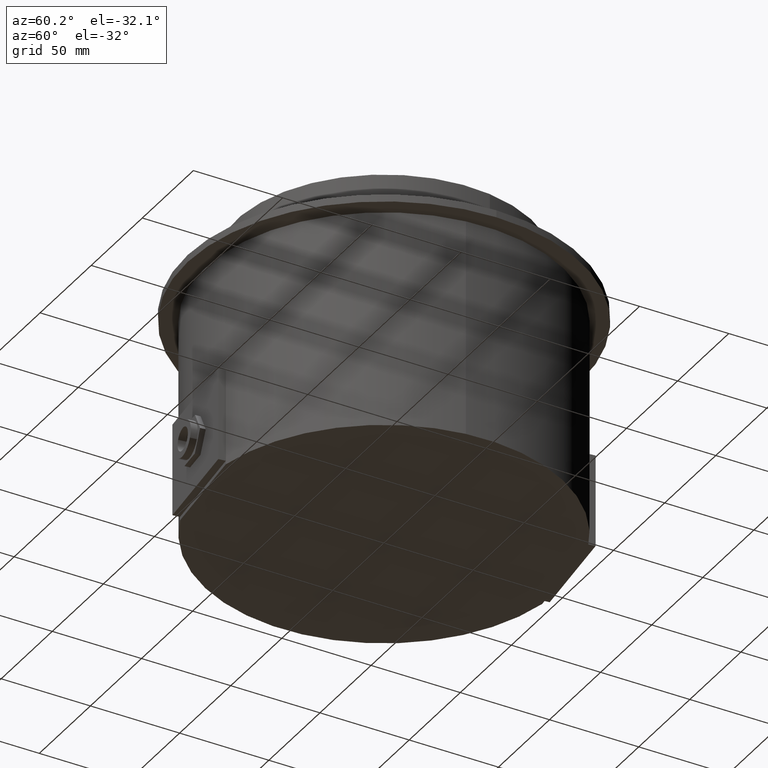
[diagram: clean part render]
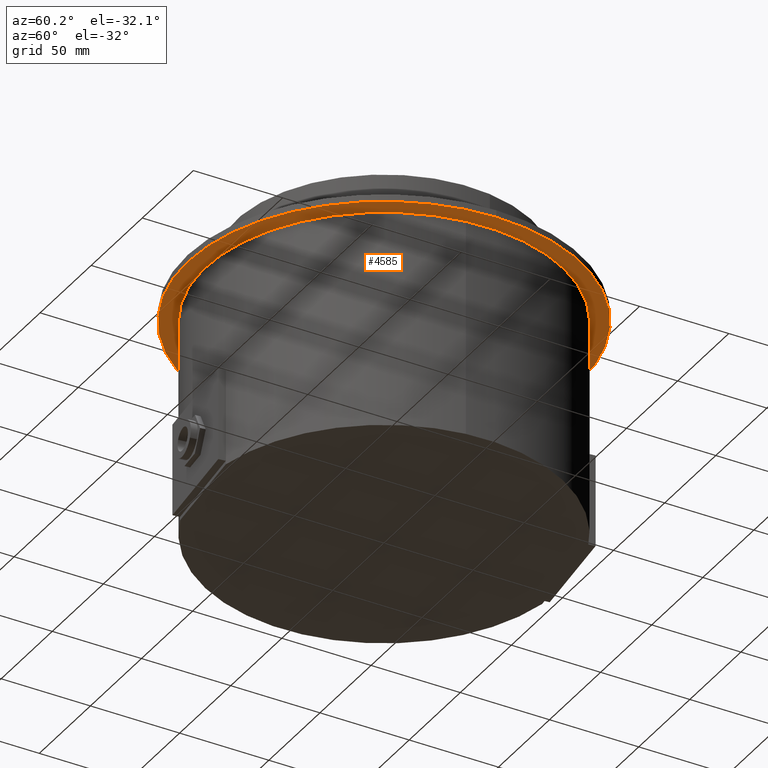
[diagram: same view with one face highlighted and labeled with its STEP entity id]
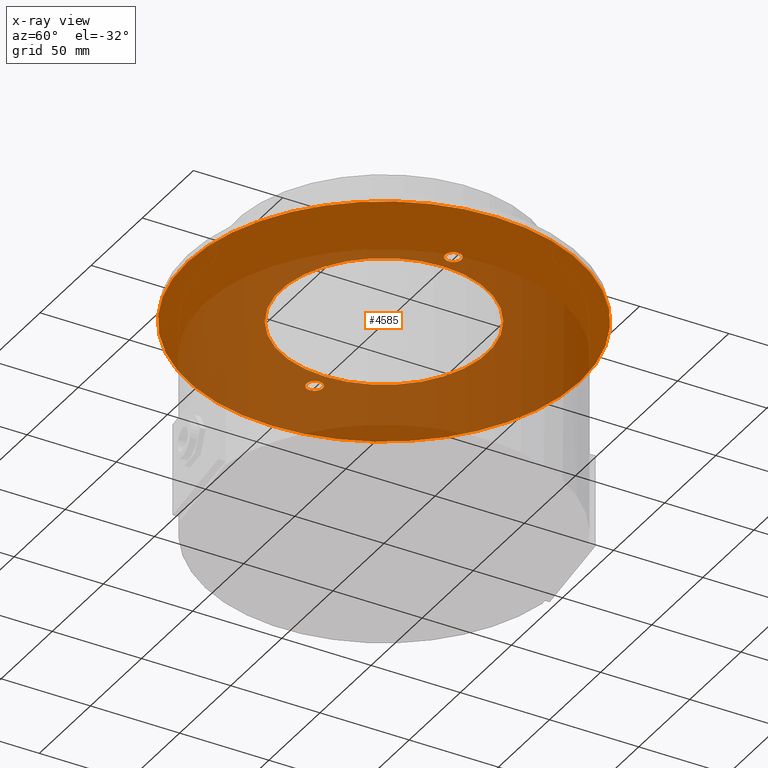
[diagram: x-ray of the same camera — body ghosted, the highlighted face saturated]
A machine part, auxiliary view. The second image highlights one B-rep face of the part: STEP entity #4585.
The next image is the same camera in x-ray: the body ghosted, the highlighted face saturated — about 61% of this face is hidden behind the body in this view.
In plain terms, the highlighted planar face has unit normal (0, 0, 1).
Its self-contained STEP definition (entity closure, byte-faithful):
#24 = ORIENTED_EDGE ( 'NONE', *, *, #17613, .T. ) ;
#1318 = EDGE_LOOP ( 'NONE', ( #55996, #6424, #7545 ) ) ;
#1625 = EDGE_CURVE ( 'NONE', #24598, #12243, #41627, .T. ) ;
#2078 = AXIS2_PLACEMENT_3D ( 'NONE', #36292, #9074, #40923 ) ;
#3851 = AXIS2_PLACEMENT_3D ( 'NONE', #36783, #9571, #41412 ) ;
#4585 = ADVANCED_FACE ( 'NONE', ( #37841, #49979, #51390, #25795 ), #6636, .F. ) ;
#5155 = CARTESIAN_POINT ( 'NONE',  ( -72.40000000000000568, 0.0000000000000000000, 0.0000000000000000000 ) ) ;
#5247 = CARTESIAN_POINT ( 'NONE',  ( 110.0000000000000000, 1.347111479062088523E-14, 0.0000000000000000000 ) ) ;
#6116 = AXIS2_PLACEMENT_3D ( 'NONE', #34309, #7049, #38869 ) ;
#6424 = ORIENTED_EDGE ( 'NONE', *, *, #30745, .T. ) ;
#6523 = EDGE_CURVE ( 'NONE', #19805, #12124, #43022, .T. ) ;
#6636 = PLANE ( 'NONE',  #37545 ) ;
#7049 = DIRECTION ( 'NONE',  ( 0.0000000000000000000, 0.0000000000000000000, 1.000000000000000000 ) ) ;
#7545 = ORIENTED_EDGE ( 'NONE', *, *, #38887, .T. ) ;
#8565 = CARTESIAN_POINT ( 'NONE',  ( -110.0000000000000000, 0.0000000000000000000, 0.0000000000000000000 ) ) ;
#8672 = AXIS2_PLACEMENT_3D ( 'NONE', #17470, #49268, #22047 ) ;
#9074 = DIRECTION ( 'NONE',  ( 0.0000000000000000000, 0.0000000000000000000, 1.000000000000000000 ) ) ;
#9296 = CIRCLE ( 'NONE', #51491, 4.500000000000003553 ) ;
#9571 = DIRECTION ( 'NONE',  ( 0.0000000000000000000, 0.0000000000000000000, 1.000000000000000000 ) ) ;
#10508 = CARTESIAN_POINT ( 'NONE',  ( -67.90000000000000568, 0.0000000000000000000, 0.0000000000000000000 ) ) ;
#11182 = DIRECTION ( 'NONE',  ( 0.0000000000000000000, 0.0000000000000000000, 1.000000000000000000 ) ) ;
#12124 = VERTEX_POINT ( 'NONE', #54030 ) ;
#12243 = VERTEX_POINT ( 'NONE', #5247 ) ;
#12325 = CIRCLE ( 'NONE', #18760, 110.0000000000000000 ) ;
#12429 = CARTESIAN_POINT ( 'NONE',  ( -67.90000000000000568, 0.0000000000000000000, 0.0000000000000000000 ) ) ;
#12891 = ORIENTED_EDGE ( 'NONE', *, *, #13926, .T. ) ;
#13926 = EDGE_CURVE ( 'NONE', #50196, #39846, #46846, .T. ) ;
#15101 = DIRECTION ( 'NONE',  ( 1.000000000000000000, 0.0000000000000000000, 0.0000000000000000000 ) ) ;
#16517 = AXIS2_PLACEMENT_3D ( 'NONE', #12429, #44237, #16989 ) ;
#16989 = DIRECTION ( 'NONE',  ( 1.000000000000000000, 0.0000000000000000000, 0.0000000000000000000 ) ) ;
#17330 = ORIENTED_EDGE ( 'NONE', *, *, #42077, .T. ) ;
#17470 = CARTESIAN_POINT ( 'NONE',  ( 0.0000000000000000000, 0.0000000000000000000, 0.0000000000000000000 ) ) ;
#17613 = EDGE_CURVE ( 'NONE', #12124, #20191, #56505, .T. ) ;
#17812 = CARTESIAN_POINT ( 'NONE',  ( 67.90000000000000568, 0.0000000000000000000, 0.0000000000000000000 ) ) ;
#18534 = DIRECTION ( 'NONE',  ( 0.0000000000000000000, 0.0000000000000000000, 1.000000000000000000 ) ) ;
#18760 = AXIS2_PLACEMENT_3D ( 'NONE', #45756, #18534, #50324 ) ;
#19565 = EDGE_CURVE ( 'NONE', #35144, #24855, #51409, .T. ) ;
#19805 = VERTEX_POINT ( 'NONE', #46842 ) ;
#20191 = VERTEX_POINT ( 'NONE', #40852 ) ;
#20392 = DIRECTION ( 'NONE',  ( 0.0000000000000000000, 0.0000000000000000000, 1.000000000000000000 ) ) ;
#21198 = CARTESIAN_POINT ( 'NONE',  ( -58.00000000000000000, 0.0000000000000000000, 0.0000000000000000000 ) ) ;
#22047 = DIRECTION ( 'NONE',  ( 1.000000000000000000, 0.0000000000000000000, 0.0000000000000000000 ) ) ;
#22383 = DIRECTION ( 'NONE',  ( 1.000000000000000000, 0.0000000000000000000, 0.0000000000000000000 ) ) ;
#22834 = EDGE_LOOP ( 'NONE', ( #17330, #12891 ) ) ;
#24598 = VERTEX_POINT ( 'NONE', #8565 ) ;
#24855 = VERTEX_POINT ( 'NONE', #37153 ) ;
#25795 = FACE_BOUND ( 'NONE', #47703, .T. ) ;
#27094 = CARTESIAN_POINT ( 'NONE',  ( 0.0000000000000000000, 0.0000000000000000000, 0.0000000000000000000 ) ) ;
#27802 = CIRCLE ( 'NONE', #43200, 58.00000000000000000 ) ;
#30745 = EDGE_CURVE ( 'NONE', #24855, #49430, #42626, .T. ) ;
#31624 = DIRECTION ( 'NONE',  ( 1.000000000000000000, 0.0000000000000000000, 0.0000000000000000000 ) ) ;
#34309 = CARTESIAN_POINT ( 'NONE',  ( 67.90000000000000568, 0.0000000000000000000, 0.0000000000000000000 ) ) ;
#35144 = VERTEX_POINT ( 'NONE', #5155 ) ;
#35737 = CIRCLE ( 'NONE', #3851, 4.500000000000003553 ) ;
#35739 = AXIS2_PLACEMENT_3D ( 'NONE', #17812, #49599, #22383 ) ;
#36292 = CARTESIAN_POINT ( 'NONE',  ( -67.90000000000000568, 0.0000000000000000000, 0.0000000000000000000 ) ) ;
#36783 = CARTESIAN_POINT ( 'NONE',  ( 67.90000000000000568, 0.0000000000000000000, 0.0000000000000000000 ) ) ;
#37153 = CARTESIAN_POINT ( 'NONE',  ( -69.07767729684518088, -4.343164305491507449, -1.151926497521296314E-13 ) ) ;
#37545 = AXIS2_PLACEMENT_3D ( 'NONE', #37864, #20392, #52215 ) ;
#37781 = ORIENTED_EDGE ( 'NONE', *, *, #6523, .T. ) ;
#37825 = AXIS2_PLACEMENT_3D ( 'NONE', #38416, #11182, #43015 ) ;
#37841 = FACE_OUTER_BOUND ( 'NONE', #41199, .T. ) ;
#37864 = CARTESIAN_POINT ( 'NONE',  ( 0.0000000000000000000, 0.0000000000000000000, 0.0000000000000000000 ) ) ;
#38416 = CARTESIAN_POINT ( 'NONE',  ( 0.0000000000000000000, 0.0000000000000000000, 0.0000000000000000000 ) ) ;
#38869 = DIRECTION ( 'NONE',  ( 1.000000000000000000, 0.0000000000000000000, 0.0000000000000000000 ) ) ;
#38887 = EDGE_CURVE ( 'NONE', #49430, #35144, #9296, .T. ) ;
#39426 = ORIENTED_EDGE ( 'NONE', *, *, #1625, .F. ) ;
#39846 = VERTEX_POINT ( 'NONE', #21198 ) ;
#40852 = CARTESIAN_POINT ( 'NONE',  ( 72.40000000000000568, 5.510910596163096458E-16, 0.0000000000000000000 ) ) ;
#40923 = DIRECTION ( 'NONE',  ( 1.000000000000000000, 0.0000000000000000000, 0.0000000000000000000 ) ) ;
#41199 = EDGE_LOOP ( 'NONE', ( #39426, #46578 ) ) ;
#41412 = DIRECTION ( 'NONE',  ( 1.000000000000000000, 0.0000000000000000000, 0.0000000000000000000 ) ) ;
#41627 = CIRCLE ( 'NONE', #37825, 110.0000000000000000 ) ;
#42077 = EDGE_CURVE ( 'NONE', #39846, #50196, #27802, .T. ) ;
#42335 = DIRECTION ( 'NONE',  ( 0.0000000000000000000, 0.0000000000000000000, 1.000000000000000000 ) ) ;
#42626 = CIRCLE ( 'NONE', #16517, 4.500000000000003553 ) ;
#43015 = DIRECTION ( 'NONE',  ( 1.000000000000000000, 0.0000000000000000000, 0.0000000000000000000 ) ) ;
#43022 = CIRCLE ( 'NONE', #35739, 4.500000000000003553 ) ;
#43200 = AXIS2_PLACEMENT_3D ( 'NONE', #27094, #58840, #31624 ) ;
#44237 = DIRECTION ( 'NONE',  ( 0.0000000000000000000, 0.0000000000000000000, 1.000000000000000000 ) ) ;
#45756 = CARTESIAN_POINT ( 'NONE',  ( 0.0000000000000000000, 0.0000000000000000000, 0.0000000000000000000 ) ) ;
#46397 = ORIENTED_EDGE ( 'NONE', *, *, #58835, .T. ) ;
#46578 = ORIENTED_EDGE ( 'NONE', *, *, #49721, .F. ) ;
#46842 = CARTESIAN_POINT ( 'NONE',  ( 63.39999999999999858, 0.0000000000000000000, 0.0000000000000000000 ) ) ;
#46846 = CIRCLE ( 'NONE', #8672, 58.00000000000000000 ) ;
#47703 = EDGE_LOOP ( 'NONE', ( #37781, #24, #46397 ) ) ;
#49268 = DIRECTION ( 'NONE',  ( 0.0000000000000000000, 0.0000000000000000000, 1.000000000000000000 ) ) ;
#49430 = VERTEX_POINT ( 'NONE', #52423 ) ;
#49599 = DIRECTION ( 'NONE',  ( 0.0000000000000000000, 0.0000000000000000000, 1.000000000000000000 ) ) ;
#49721 = EDGE_CURVE ( 'NONE', #12243, #24598, #12325, .T. ) ;
#49979 = FACE_BOUND ( 'NONE', #22834, .T. ) ;
#50196 = VERTEX_POINT ( 'NONE', #50224 ) ;
#50224 = CARTESIAN_POINT ( 'NONE',  ( 58.00000000000000000, 7.102951435054648059E-15, 0.0000000000000000000 ) ) ;
#50324 = DIRECTION ( 'NONE',  ( 1.000000000000000000, 0.0000000000000000000, 0.0000000000000000000 ) ) ;
#51390 = FACE_BOUND ( 'NONE', #1318, .T. ) ;
#51409 = CIRCLE ( 'NONE', #2078, 4.500000000000003553 ) ;
#51491 = AXIS2_PLACEMENT_3D ( 'NONE', #10508, #42335, #15101 ) ;
#52215 = DIRECTION ( 'NONE',  ( 1.000000000000000000, 0.0000000000000000000, -0.0000000000000000000 ) ) ;
#52423 = CARTESIAN_POINT ( 'NONE',  ( -63.39999999999999858, 5.510910596163096458E-16, 0.0000000000000000000 ) ) ;
#54030 = CARTESIAN_POINT ( 'NONE',  ( 66.72232270315483049, -4.343164305491500343, -1.165606918180674320E-13 ) ) ;
#55996 = ORIENTED_EDGE ( 'NONE', *, *, #19565, .T. ) ;
#56505 = CIRCLE ( 'NONE', #6116, 4.500000000000003553 ) ;
#58835 = EDGE_CURVE ( 'NONE', #20191, #19805, #35737, .T. ) ;
#58840 = DIRECTION ( 'NONE',  ( 0.0000000000000000000, 0.0000000000000000000, 1.000000000000000000 ) ) ;